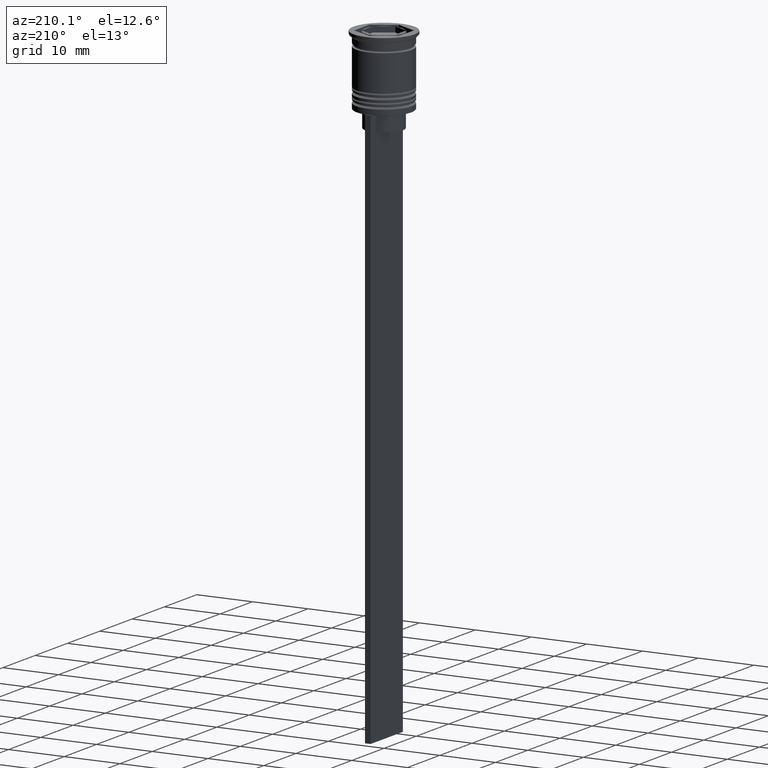
[diagram: clean part render]
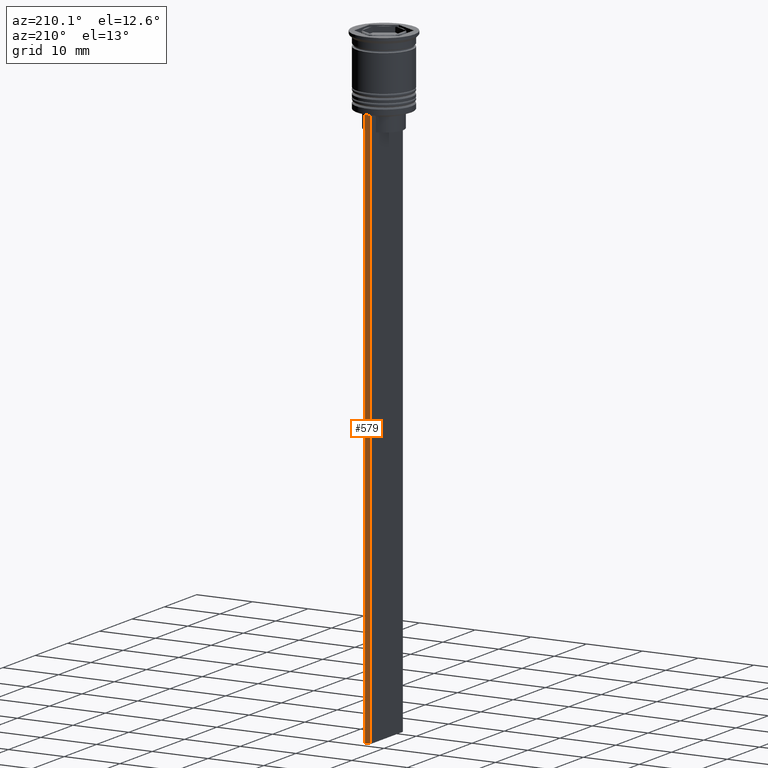
[diagram: same view with one face highlighted and labeled with its STEP entity id]
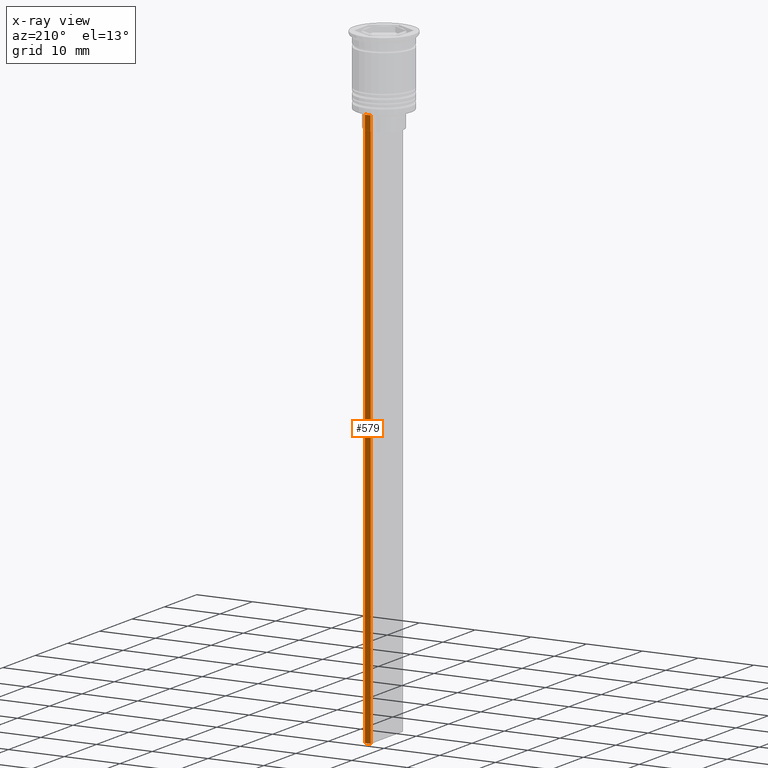
[diagram: x-ray of the same camera — body ghosted, the highlighted face saturated]
A machine part, auxiliary view. The second image highlights one B-rep face of the part: STEP entity #579.
The next image is the same camera in x-ray: the body ghosted, the highlighted face saturated — about 0% of this face is hidden behind the body in this view.
In plain terms, the highlighted planar face has unit normal (0, -1, -0).
Its self-contained STEP definition (entity closure, byte-faithful):
#67 = CARTESIAN_POINT ( 'NONE',  ( 0.5000000000000000000, 5.000000000000000888, -112.5000000000000000 ) ) ;
#103 = CARTESIAN_POINT ( 'NONE',  ( 0.5000000000000000000, 5.000000000000000888, -2.450124378879110054 ) ) ;
#165 = CARTESIAN_POINT ( 'NONE',  ( -0.5000000000000000000, 5.000000000000000888, -12.50000000000000000 ) ) ;
#192 = CARTESIAN_POINT ( 'NONE',  ( -0.5000000000000000000, 5.000000000000000888, -112.5000000000000000 ) ) ;
#238 = LINE ( 'NONE', #1781, #1327 ) ;
#300 = PLANE ( 'NONE',  #928 ) ;
#316 = VERTEX_POINT ( 'NONE', #67 ) ;
#321 = VECTOR ( 'NONE', #2280, 1000.000000000000000 ) ;
#329 = ORIENTED_EDGE ( 'NONE', *, *, #1363, .F. ) ;
#366 = EDGE_CURVE ( 'NONE', #2275, #1546, #567, .T. ) ;
#491 = DIRECTION ( 'NONE',  ( 0.000000000000000000, 0.000000000000000000, -1.000000000000000000 ) ) ;
#507 = ORIENTED_EDGE ( 'NONE', *, *, #366, .T. ) ;
#567 = LINE ( 'NONE', #2159, #1183 ) ;
#579 = ADVANCED_FACE ( 'NONE', ( #2088 ), #300, .F. ) ;
#905 = CARTESIAN_POINT ( 'NONE',  ( 0.5000000000000000000, 5.000000000000000888, -2.450124378879110054 ) ) ;
#928 = AXIS2_PLACEMENT_3D ( 'NONE', #103, #2493, #1111 ) ;
#1006 = EDGE_LOOP ( 'NONE', ( #329, #507, #2239, #1960 ) ) ;
#1103 = VERTEX_POINT ( 'NONE', #192 ) ;
#1111 = DIRECTION ( 'NONE',  ( 0.000000000000000000, 0.000000000000000000, -1.000000000000000000 ) ) ;
#1183 = VECTOR ( 'NONE', #1325, 1000.000000000000000 ) ;
#1224 = DIRECTION ( 'NONE',  ( -1.000000000000000000, 0.000000000000000000, 0.000000000000000000 ) ) ;
#1314 = LINE ( 'NONE', #2488, #321 ) ;
#1325 = DIRECTION ( 'NONE',  ( 1.000000000000000000, 0.000000000000000000, 0.000000000000000000 ) ) ;
#1327 = VECTOR ( 'NONE', #1224, 1000.000000000000000 ) ;
#1363 = EDGE_CURVE ( 'NONE', #2275, #1103, #1314, .T. ) ;
#1395 = EDGE_CURVE ( 'NONE', #1546, #316, #1564, .T. ) ;
#1546 = VERTEX_POINT ( 'NONE', #1790 ) ;
#1564 = LINE ( 'NONE', #905, #2120 ) ;
#1781 = CARTESIAN_POINT ( 'NONE',  ( 0.5000000000000000000, 5.000000000000000888, -112.5000000000000000 ) ) ;
#1790 = CARTESIAN_POINT ( 'NONE',  ( 0.5000000000000000000, 5.000000000000000888, -12.50000000000000000 ) ) ;
#1960 = ORIENTED_EDGE ( 'NONE', *, *, #2449, .T. ) ;
#2088 = FACE_OUTER_BOUND ( 'NONE', #1006, .T. ) ;
#2120 = VECTOR ( 'NONE', #491, 1000.000000000000000 ) ;
#2159 = CARTESIAN_POINT ( 'NONE',  ( 0.5000000000000000000, 5.000000000000000888, -12.50000000000000000 ) ) ;
#2239 = ORIENTED_EDGE ( 'NONE', *, *, #1395, .T. ) ;
#2275 = VERTEX_POINT ( 'NONE', #165 ) ;
#2280 = DIRECTION ( 'NONE',  ( 0.000000000000000000, 0.000000000000000000, -1.000000000000000000 ) ) ;
#2449 = EDGE_CURVE ( 'NONE', #316, #1103, #238, .T. ) ;
#2488 = CARTESIAN_POINT ( 'NONE',  ( -0.5000000000000000000, 5.000000000000000888, -2.450124378879110054 ) ) ;
#2493 = DIRECTION ( 'NONE',  ( 0.000000000000000000, -1.000000000000000000, -0.000000000000000000 ) ) ;